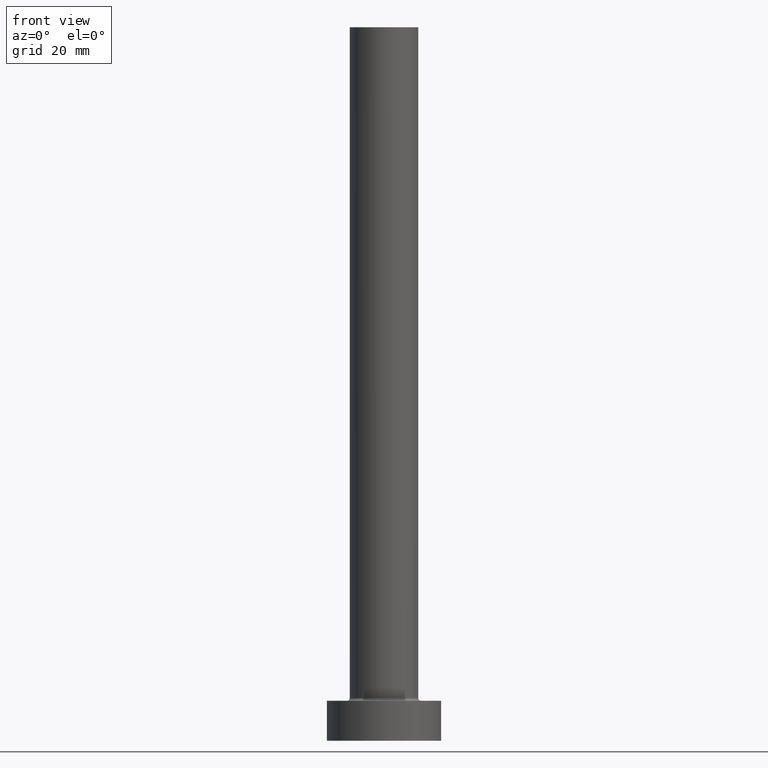
[diagram: clean part render]
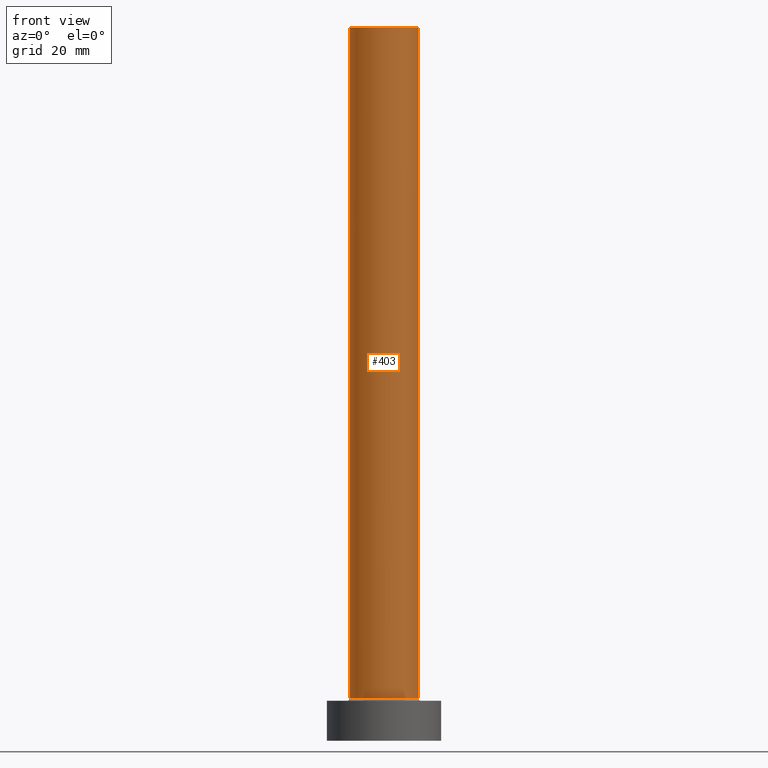
[diagram: same view with one face highlighted and labeled with its STEP entity id]
A machine part, front view. The second image highlights one B-rep face of the part: STEP entity #403.
In plain terms, the highlighted cylindrical surface (edge-blend (fillet) strip) has radius 6 mm, axis along (-0, -0, -1).
Its self-contained STEP definition (entity closure, byte-faithful):
#4 = DIRECTION ( 'NONE',  ( -0.000000000000000000, -0.000000000000000000, -1.000000000000000000 ) ) ;
#12 = VECTOR ( 'NONE', #396, 1000.000000000000000 ) ;
#30 = DIRECTION ( 'NONE',  ( 1.000000000000000000, 0.000000000000000000, 0.000000000000000000 ) ) ;
#34 = AXIS2_PLACEMENT_3D ( 'NONE', #303, #88, #30 ) ;
#35 = VECTOR ( 'NONE', #274, 1000.000000000000000 ) ;
#54 = VERTEX_POINT ( 'NONE', #249 ) ;
#69 = CARTESIAN_POINT ( 'NONE',  ( 0.000000000000000000, 0.000000000000000000, 125.0000000000000000 ) ) ;
#70 = EDGE_CURVE ( 'NONE', #160, #345, #219, .T. ) ;
#88 = DIRECTION ( 'NONE',  ( 0.000000000000000000, 0.000000000000000000, 1.000000000000000000 ) ) ;
#129 = CARTESIAN_POINT ( 'NONE',  ( 6.000000000000000888, 7.347880794884120722E-16, 125.0000000000000000 ) ) ;
#130 = CARTESIAN_POINT ( 'NONE',  ( -6.000000000000000888, 0.000000000000000000, 125.0000000000000000 ) ) ;
#142 = ORIENTED_EDGE ( 'NONE', *, *, #252, .T. ) ;
#150 = DIRECTION ( 'NONE',  ( -1.000000000000000000, 0.000000000000000000, 0.000000000000000000 ) ) ;
#152 = VERTEX_POINT ( 'NONE', #395 ) ;
#160 = VERTEX_POINT ( 'NONE', #130 ) ;
#180 = FACE_OUTER_BOUND ( 'NONE', #384, .T. ) ;
#199 = AXIS2_PLACEMENT_3D ( 'NONE', #207, #312, #423 ) ;
#207 = CARTESIAN_POINT ( 'NONE',  ( 0.000000000000000000, 0.000000000000000000, 7.500000000000007105 ) ) ;
#219 = LINE ( 'NONE', #250, #12 ) ;
#234 = EDGE_CURVE ( 'NONE', #160, #152, #237, .T. ) ;
#236 = ORIENTED_EDGE ( 'NONE', *, *, #330, .F. ) ;
#237 = CIRCLE ( 'NONE', #34, 6.000000000000000888 ) ;
#249 = CARTESIAN_POINT ( 'NONE',  ( 6.000000000000000888, 7.347880794884120722E-16, 7.500000000000007105 ) ) ;
#250 = CARTESIAN_POINT ( 'NONE',  ( -6.000000000000000888, 0.000000000000000000, 125.0000000000000000 ) ) ;
#252 = EDGE_CURVE ( 'NONE', #345, #54, #365, .T. ) ;
#274 = DIRECTION ( 'NONE',  ( -0.000000000000000000, -0.000000000000000000, -1.000000000000000000 ) ) ;
#280 = ORIENTED_EDGE ( 'NONE', *, *, #70, .T. ) ;
#303 = CARTESIAN_POINT ( 'NONE',  ( 0.000000000000000000, 0.000000000000000000, 125.0000000000000000 ) ) ;
#312 = DIRECTION ( 'NONE',  ( 0.000000000000000000, 0.000000000000000000, 1.000000000000000000 ) ) ;
#330 = EDGE_CURVE ( 'NONE', #152, #54, #379, .T. ) ;
#345 = VERTEX_POINT ( 'NONE', #454 ) ;
#365 = CIRCLE ( 'NONE', #199, 6.000000000000000888 ) ;
#379 = LINE ( 'NONE', #129, #35 ) ;
#384 = EDGE_LOOP ( 'NONE', ( #236, #452, #280, #142 ) ) ;
#395 = CARTESIAN_POINT ( 'NONE',  ( 6.000000000000000888, 7.347880794884120722E-16, 125.0000000000000000 ) ) ;
#396 = DIRECTION ( 'NONE',  ( -0.000000000000000000, -0.000000000000000000, -1.000000000000000000 ) ) ;
#398 = AXIS2_PLACEMENT_3D ( 'NONE', #69, #4, #150 ) ;
#403 = ADVANCED_FACE ( 'NONE', ( #180 ), #405, .T. ) ;
#405 = CYLINDRICAL_SURFACE ( 'NONE', #398, 6.000000000000000888 ) ;
#423 = DIRECTION ( 'NONE',  ( 1.000000000000000000, 0.000000000000000000, 0.000000000000000000 ) ) ;
#452 = ORIENTED_EDGE ( 'NONE', *, *, #234, .F. ) ;
#454 = CARTESIAN_POINT ( 'NONE',  ( -6.000000000000000888, 0.000000000000000000, 7.500000000000007105 ) ) ;